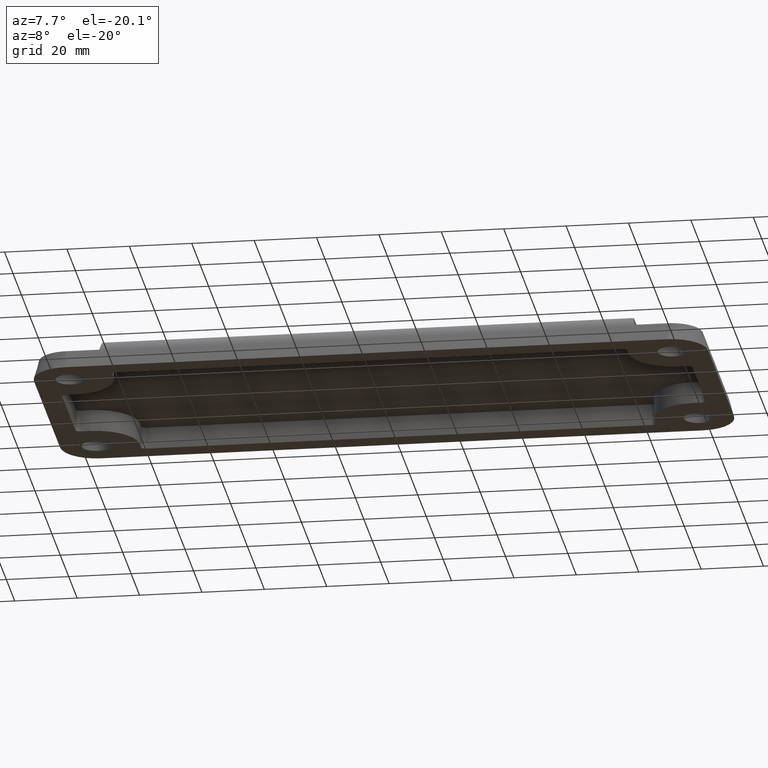
[diagram: clean part render]
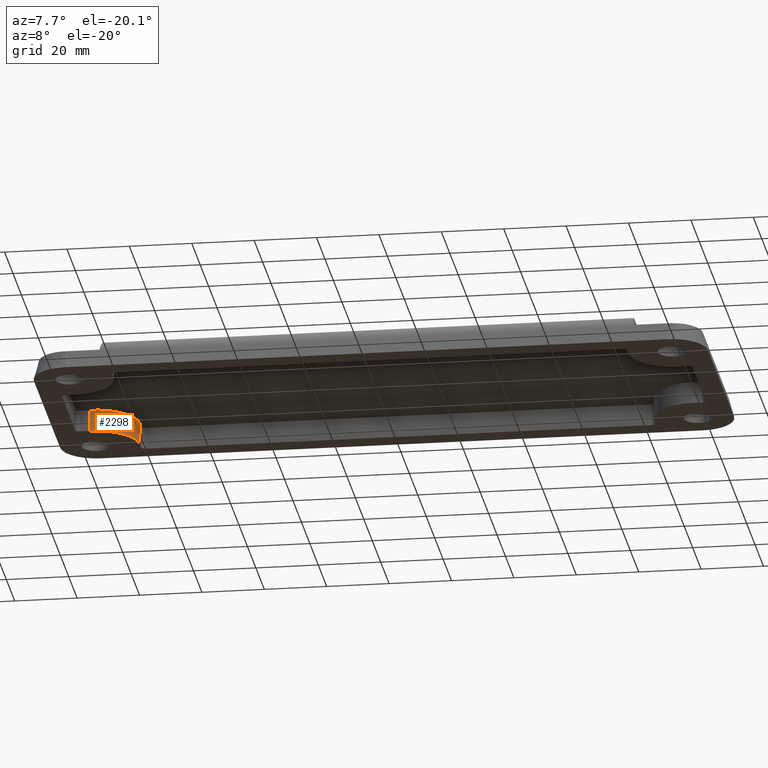
[diagram: same view with one face highlighted and labeled with its STEP entity id]
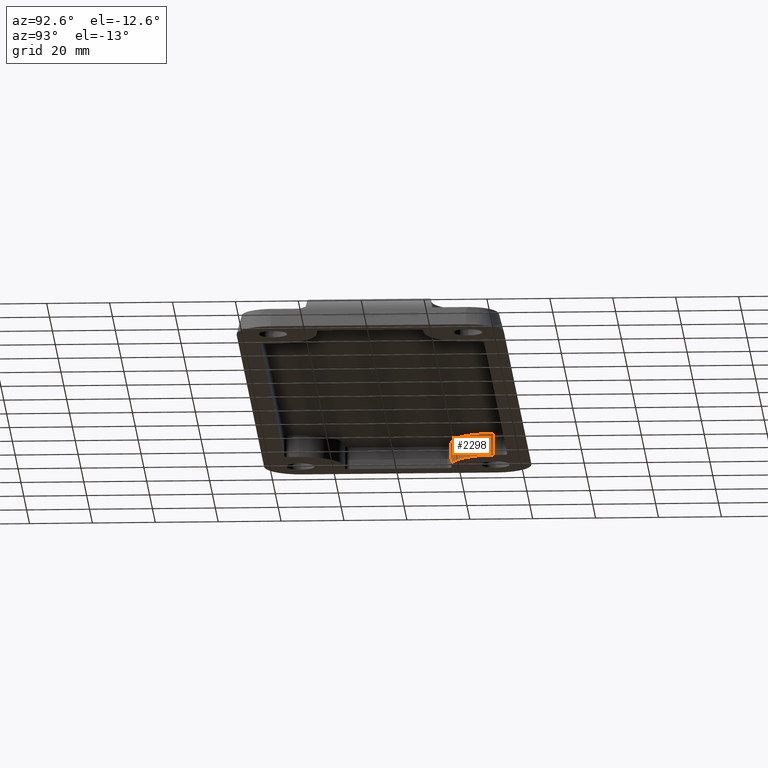
[diagram: same view with one face highlighted and labeled with its STEP entity id]
A machine part, auxiliary view. The second image highlights one B-rep face of the part: STEP entity #2298.
A second angle (auxiliary view) of the same face is appended — the face is thin or edge-on in the first view.
In plain terms, the highlighted conical surface has half-angle 1 deg.
Its self-contained STEP definition (entity closure, byte-faithful):
#204 = ORIENTED_EDGE ( 'NONE', *, *, #3275, .T. ) ;
#429 = CARTESIAN_POINT ( 'NONE',  ( -96.50000000000000000, 16.99999999999999600, 0.0000000000000000000 ) ) ;
#469 = DIRECTION ( 'NONE',  ( 1.000000000000000000, 0.0000000000000000000, 0.0000000000000000000 ) ) ;
#479 = CARTESIAN_POINT ( 'NONE',  ( -96.50000000000000000, 31.00000000000000000, 0.0000000000000000000 ) ) ;
#511 = CIRCLE ( 'NONE', #3239, 14.12218545449751900 ) ;
#519 = VERTEX_POINT ( 'NONE', #429 ) ;
#734 = EDGE_CURVE ( 'NONE', #3167, #519, #4070, .T. ) ;
#846 = CARTESIAN_POINT ( 'NONE',  ( -96.50000000000000000, 16.99999999999999600, 0.0000000000000000000 ) ) ;
#918 = DIRECTION ( 'NONE',  ( 0.0000000000000000000, 0.0000000000000000000, 1.000000000000000000 ) ) ;
#1017 = FACE_OUTER_BOUND ( 'NONE', #1525, .T. ) ;
#1124 = DIRECTION ( 'NONE',  ( -1.000000000000000000, 0.0000000000000000000, 0.0000000000000000000 ) ) ;
#1306 = VECTOR ( 'NONE', #4718, 1000.000000000000100 ) ;
#1320 = CARTESIAN_POINT ( 'NONE',  ( -82.37781454550248800, 31.00000000000000000, 7.000000000000000000 ) ) ;
#1525 = EDGE_LOOP ( 'NONE', ( #204, #1610, #1574, #2164 ) ) ;
#1569 = AXIS2_PLACEMENT_3D ( 'NONE', #479, #3193, #3208 ) ;
#1574 = ORIENTED_EDGE ( 'NONE', *, *, #3403, .T. ) ;
#1610 = ORIENTED_EDGE ( 'NONE', *, *, #734, .T. ) ;
#1669 = CARTESIAN_POINT ( 'NONE',  ( -96.50000000000000000, 31.00000000000000000, 0.0000000000000000000 ) ) ;
#1698 = CARTESIAN_POINT ( 'NONE',  ( -82.50000000000000000, 31.00000000000000000, 0.0000000000000000000 ) ) ;
#1946 = CARTESIAN_POINT ( 'NONE',  ( -96.49999999999998600, 16.87781454550247400, 7.000000000000000000 ) ) ;
#1962 = DIRECTION ( 'NONE',  ( -0.0000000000000000000, -0.0000000000000000000, -1.000000000000000000 ) ) ;
#2164 = ORIENTED_EDGE ( 'NONE', *, *, #2266, .F. ) ;
#2266 = EDGE_CURVE ( 'NONE', #2306, #2319, #2334, .T. ) ;
#2298 = ADVANCED_FACE ( 'NONE', ( #1017 ), #4882, .T. ) ;
#2306 = VERTEX_POINT ( 'NONE', #1320 ) ;
#2319 = VERTEX_POINT ( 'NONE', #1698 ) ;
#2334 = LINE ( 'NONE', #2420, #1306 ) ;
#2406 = DIRECTION ( 'NONE',  ( -6.055019831808898500E-017, 0.01745240643728354600, -0.9998476951563911600 ) ) ;
#2420 = CARTESIAN_POINT ( 'NONE',  ( -82.50000000000000000, 31.00000000000000000, 9.081146434440559300E-017 ) ) ;
#2869 = CIRCLE ( 'NONE', #1569, 13.99999999999999800 ) ;
#2951 = AXIS2_PLACEMENT_3D ( 'NONE', #1669, #918, #469 ) ;
#3059 = VECTOR ( 'NONE', #2406, 1000.000000000000100 ) ;
#3167 = VERTEX_POINT ( 'NONE', #1946 ) ;
#3193 = DIRECTION ( 'NONE',  ( 0.0000000000000000000, 0.0000000000000000000, 1.000000000000000000 ) ) ;
#3208 = DIRECTION ( 'NONE',  ( 1.000000000000000000, 0.0000000000000000000, 0.0000000000000000000 ) ) ;
#3239 = AXIS2_PLACEMENT_3D ( 'NONE', #4203, #1962, #1124 ) ;
#3275 = EDGE_CURVE ( 'NONE', #2306, #3167, #511, .T. ) ;
#3403 = EDGE_CURVE ( 'NONE', #519, #2319, #2869, .T. ) ;
#4070 = LINE ( 'NONE', #846, #3059 ) ;
#4203 = CARTESIAN_POINT ( 'NONE',  ( -96.50000000000000000, 31.00000000000000000, 7.000000000000000000 ) ) ;
#4718 = DIRECTION ( 'NONE',  ( -0.01745240643728354600, -0.0000000000000000000, -0.9998476951563911600 ) ) ;
#4882 = CONICAL_SURFACE ( 'NONE', #2951, 13.99999999999999800, 0.01745329251994333400 ) ;